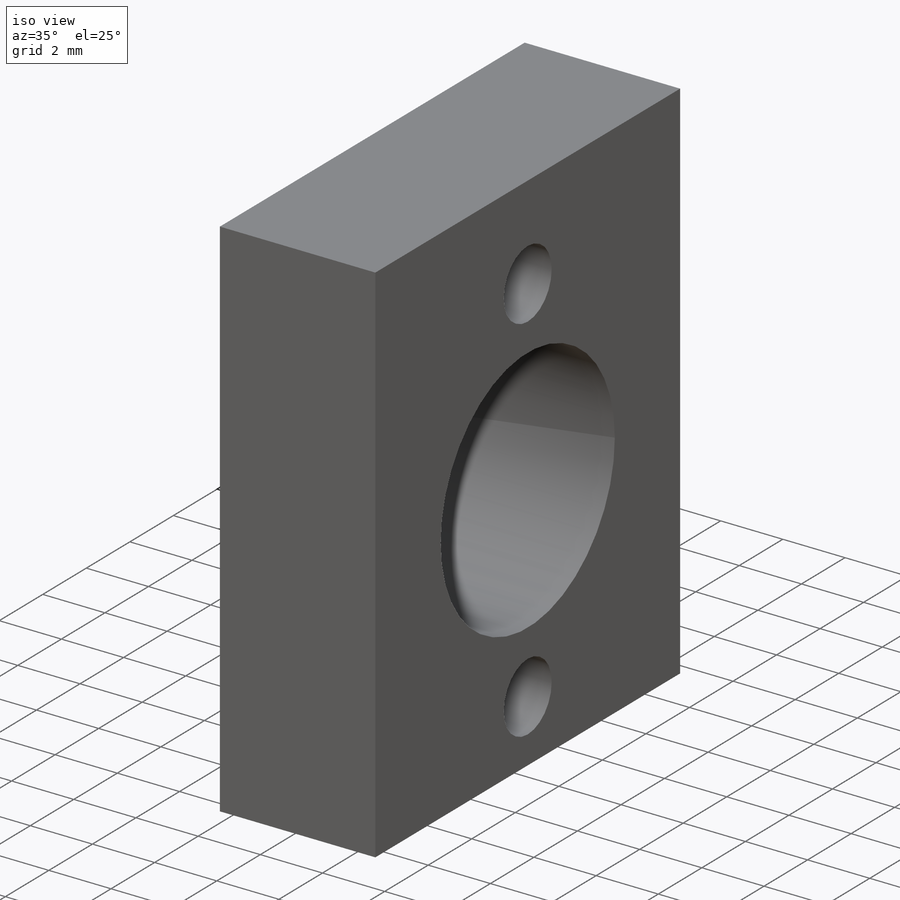
[diagram: iso view]
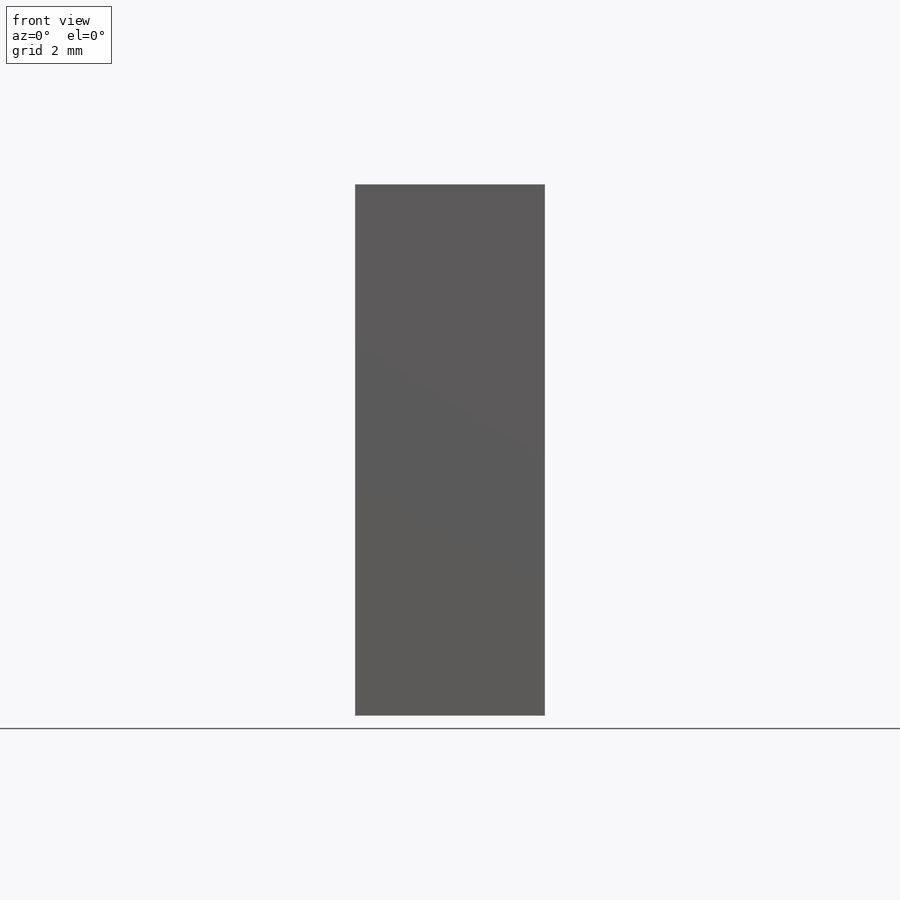
[diagram: front view]
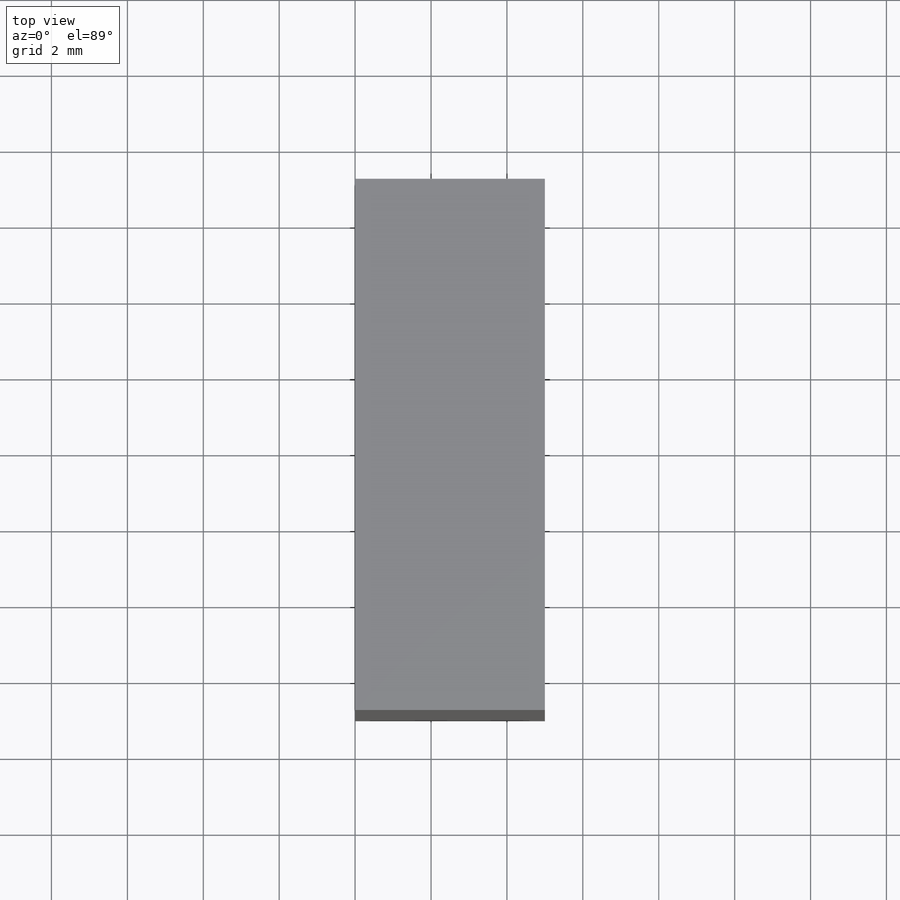
[diagram: top view]
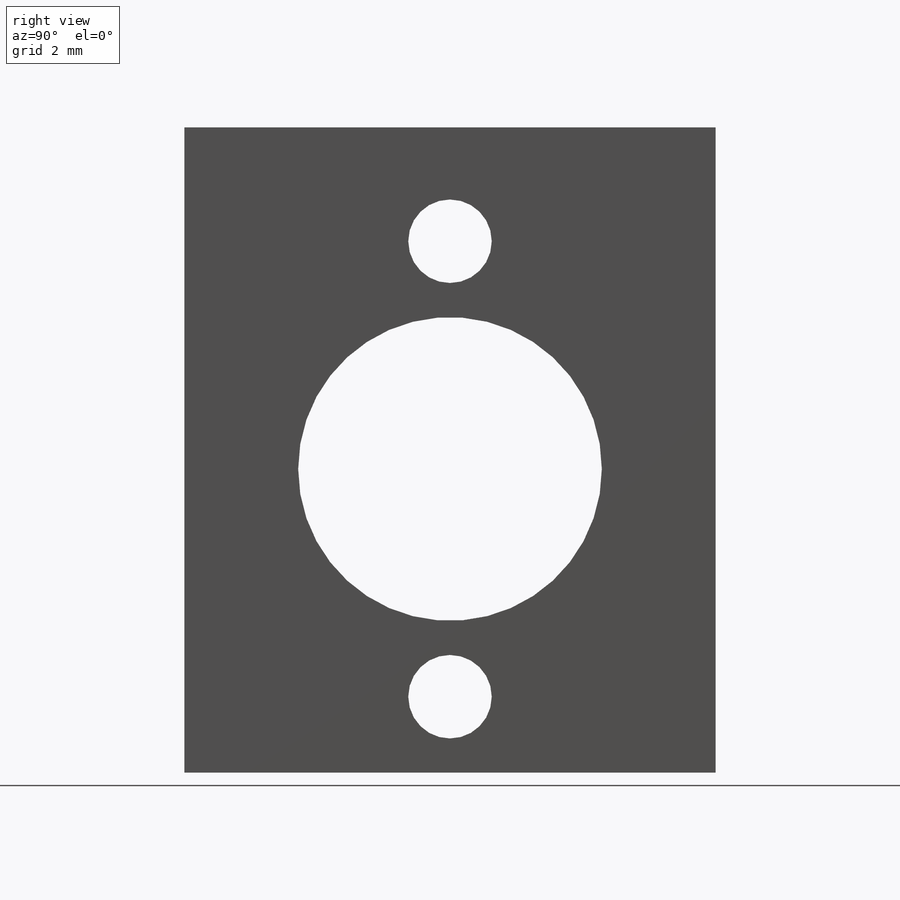
[diagram: right view]
SOLIDWORKS PART (.sldprt)
format: sldprt  version: not decoded by parser v0  size: 192,000 bytes
history: native  units: mm
features: sketch x4, material x1, extrude x1, cut_extrude x1, hole x1 (+12 scaffold rows collapsed)
feature tree (20):
  scaffold x12  (default folders/planes/origin — collapsed)
  material  "PBT General Purpose"
  sketch  "Sketch1"  dims[c1.D1=15.5mm c1.D2=5.0mm c1.D3=5.0mm c1.D4=3.0mm c1.D5=5.0mm c2.D1=17.0mm]
  extrude  "Boss-Extrude1"  Depth=7mm
  sketch  "Sketch2"  dims[D1=8.0mm D2=8.0mm]
  cut_extrude  "Cut-Extrude1"  Depth=5mm
  hole  "M2 Clearance Hole1"  Diameter=2.2mm Depth=5mm
  sketch  "Sketch8"  dims[D1=12.0mm]
  sketch  "Sketch7"  dims[hole-wizard template sketch: 60 standard entries collapsed; hole parameters kept: c18.Thru Hole Depth=5.0mm]
decode coverage: 7 of 7 modeling features carry decoded parameters
note: ~ marks probable driven/reference dimensions
note: suppression state not decoded; provenance and decode notes live in map.json
